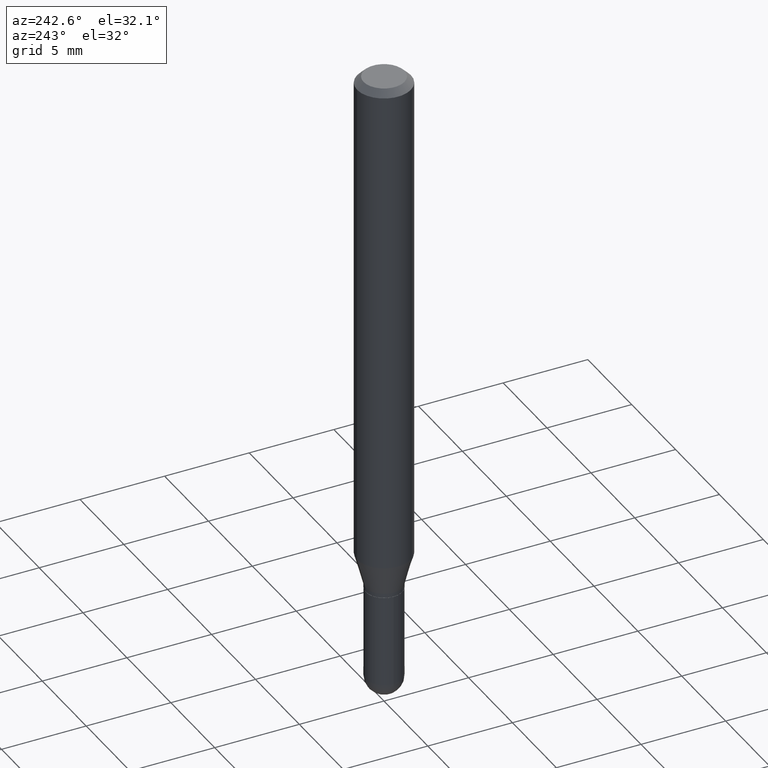
[diagram: clean part render]
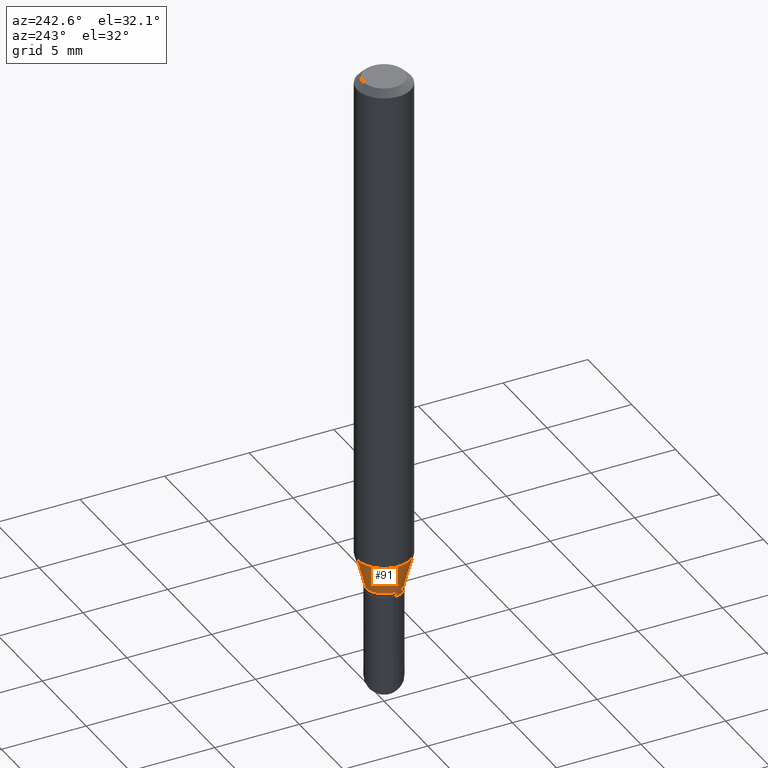
[diagram: same view with one face highlighted and labeled with its STEP entity id]
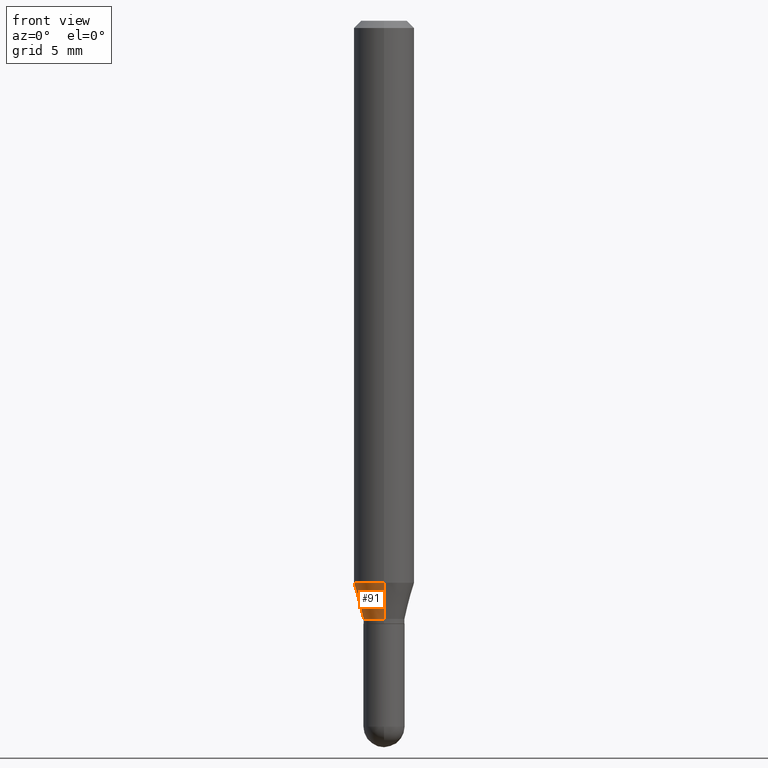
[diagram: same view with one face highlighted and labeled with its STEP entity id]
A machine part, auxiliary view. The second image highlights one B-rep face of the part: STEP entity #91.
A second angle (front view) of the same face is appended — the face is thin or edge-on in the first view.
In plain terms, the highlighted conical surface has half-angle 15 deg.
Its self-contained STEP definition (entity closure, byte-faithful):
#9 = ORIENTED_EDGE ( 'NONE', *, *, #402, .T. ) ;
#16 = AXIS2_PLACEMENT_3D ( 'NONE', #82, #121, #41 ) ;
#18 = EDGE_CURVE ( 'NONE', #36, #352, #136, .T. ) ;
#32 = DIRECTION ( 'NONE',  ( -2.445401293886370211E-29, 3.491578020297540772E-15, 1.000000000000000000 ) ) ;
#36 = VERTEX_POINT ( 'NONE', #248 ) ;
#41 = DIRECTION ( 'NONE',  ( -6.982962677686266711E-15, -1.000000000000000000, 6.427877632151220009E-15 ) ) ;
#43 = CIRCLE ( 'NONE', #334, 0.04249999999999991979 ) ;
#47 = DIRECTION ( 'NONE',  ( -2.445401293886370211E-29, 3.491578020297540772E-15, 1.000000000000000000 ) ) ;
#74 = CONICAL_SURFACE ( 'NONE', #16, 0.04249999999999991979, 0.2617993877991501850 ) ;
#82 = CARTESIAN_POINT ( 'NONE',  ( 3.020070597949667254E-29, -4.312098855067463589E-15, -1.235000000000000098 ) ) ;
#83 = ORIENTED_EDGE ( 'NONE', *, *, #18, .F. ) ;
#91 = ADVANCED_FACE ( 'NONE', ( #353 ), #74, .T. ) ;
#121 = DIRECTION ( 'NONE',  ( -2.445401293886370211E-29, 3.491578020297540772E-15, 1.000000000000000000 ) ) ;
#136 = LINE ( 'NONE', #361, #313 ) ;
#137 = CARTESIAN_POINT ( 'NONE',  ( -2.967759138016355400E-16, -0.04250000000000423578, -1.234999999999999876 ) ) ;
#155 = ORIENTED_EDGE ( 'NONE', *, *, #303, .T. ) ;
#200 = ORIENTED_EDGE ( 'NONE', *, *, #310, .F. ) ;
#236 = VERTEX_POINT ( 'NONE', #408 ) ;
#245 = DIRECTION ( 'NONE',  ( 1.839019923739599526E-15, 0.2588190451025248473, 0.9659258262890670910 ) ) ;
#248 = CARTESIAN_POINT ( 'NONE',  ( 3.730349362740815744E-16, 0.04249999999999561073, -1.235000000000000320 ) ) ;
#294 = CARTESIAN_POINT ( 'NONE',  ( 4.440892098500911138E-16, 0.06249999999999597544, -1.160358983848622794 ) ) ;
#303 = EDGE_CURVE ( 'NONE', #312, #236, #376, .T. ) ;
#310 = EDGE_CURVE ( 'NONE', #352, #236, #314, .T. ) ;
#312 = VERTEX_POINT ( 'NONE', #137 ) ;
#313 = VECTOR ( 'NONE', #245, 39.37007874015748143 ) ;
#314 = CIRCLE ( 'NONE', #379, 0.06250000000000000000 ) ;
#334 = AXIS2_PLACEMENT_3D ( 'NONE', #448, #47, #400 ) ;
#339 = DIRECTION ( 'NONE',  ( -6.982962677686265922E-15, -1.000000000000000000, 4.370956789862821150E-15 ) ) ;
#352 = VERTEX_POINT ( 'NONE', #294 ) ;
#353 = FACE_OUTER_BOUND ( 'NONE', #375, .T. ) ;
#355 = VECTOR ( 'NONE', #393, 39.37007874015749564 ) ;
#361 = CARTESIAN_POINT ( 'NONE',  ( 3.019806626980721830E-16, 0.04249999999999561073, -1.235000000000000320 ) ) ;
#375 = EDGE_LOOP ( 'NONE', ( #83, #9, #155, #200 ) ) ;
#376 = LINE ( 'NONE', #421, #355 ) ;
#379 = AXIS2_PLACEMENT_3D ( 'NONE', #422, #32, #339 ) ;
#393 = DIRECTION ( 'NONE',  ( -1.807323732225329350E-15, -0.2588190451025180194, 0.9659258262890689783 ) ) ;
#400 = DIRECTION ( 'NONE',  ( -6.982962677686266711E-15, -1.000000000000000000, 6.427877632151220009E-15 ) ) ;
#402 = EDGE_CURVE ( 'NONE', #36, #312, #43, .T. ) ;
#408 = CARTESIAN_POINT ( 'NONE',  ( -4.364351673553629253E-16, -0.06250000000000401068, -1.160358983848622128 ) ) ;
#421 = CARTESIAN_POINT ( 'NONE',  ( -2.967759138016355400E-16, -0.04250000000000423578, -1.234999999999999876 ) ) ;
#422 = CARTESIAN_POINT ( 'NONE',  ( 2.837543360476095012E-29, -4.051483923660639019E-15, -1.160358983848622572 ) ) ;
#448 = CARTESIAN_POINT ( 'NONE',  ( 3.020070597949667254E-29, -4.312098855067463589E-15, -1.235000000000000098 ) ) ;